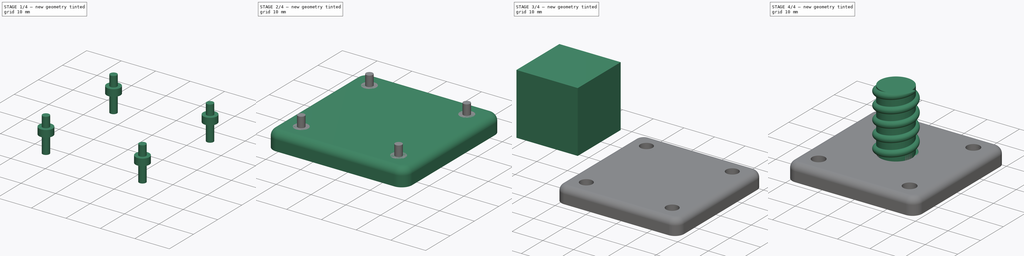
[diagram: build sequence overview — one tinted view per stage of 4, left to right]
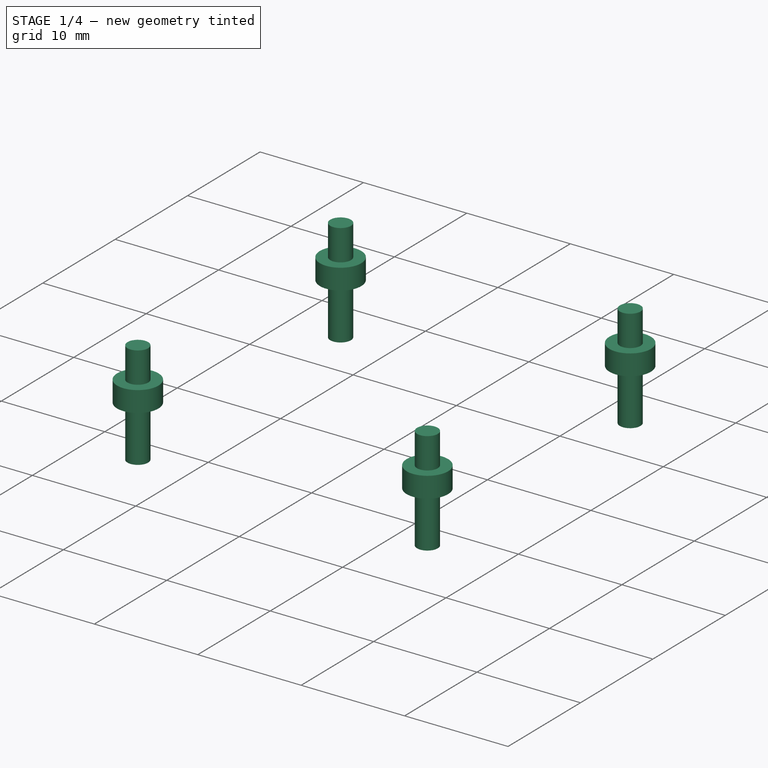
[diagram: stage 1 of 4 — iso view after this stage's code; geometry added in this stage tinted green]
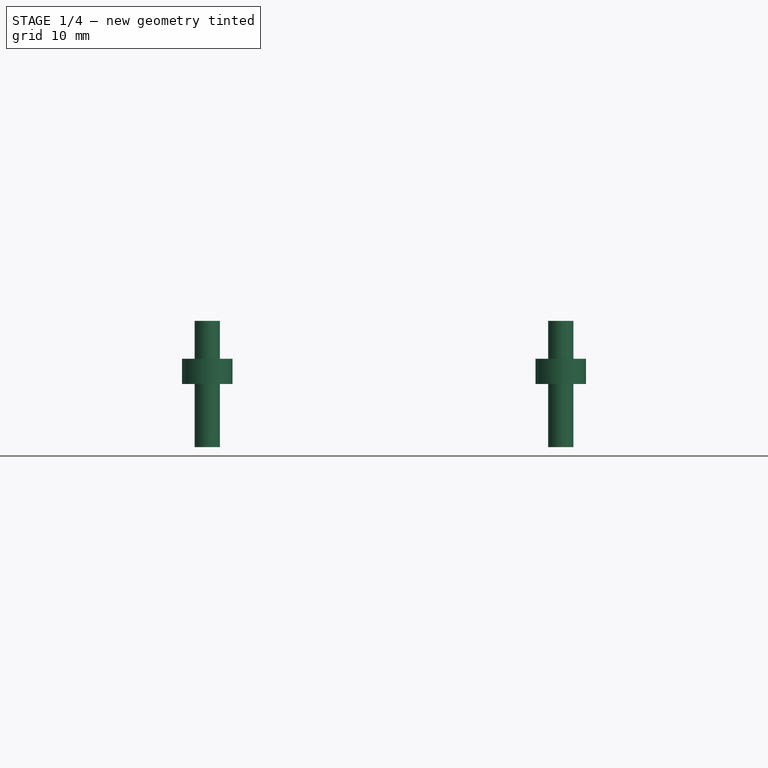
[diagram: stage 1 of 4 — front view after this stage's code; geometry added in this stage tinted green]
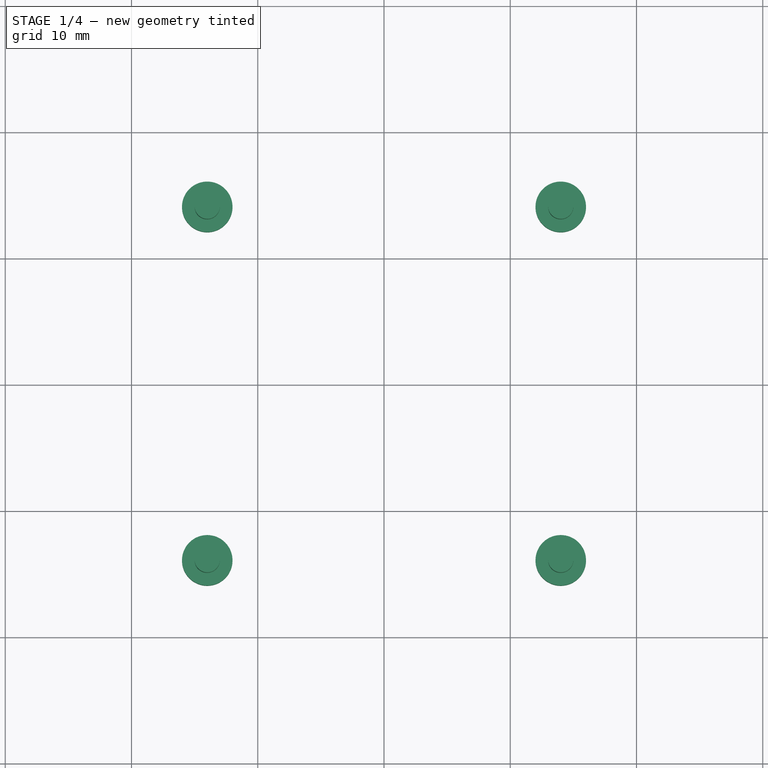
[diagram: stage 1 of 4 — top view after this stage's code; geometry added in this stage tinted green]
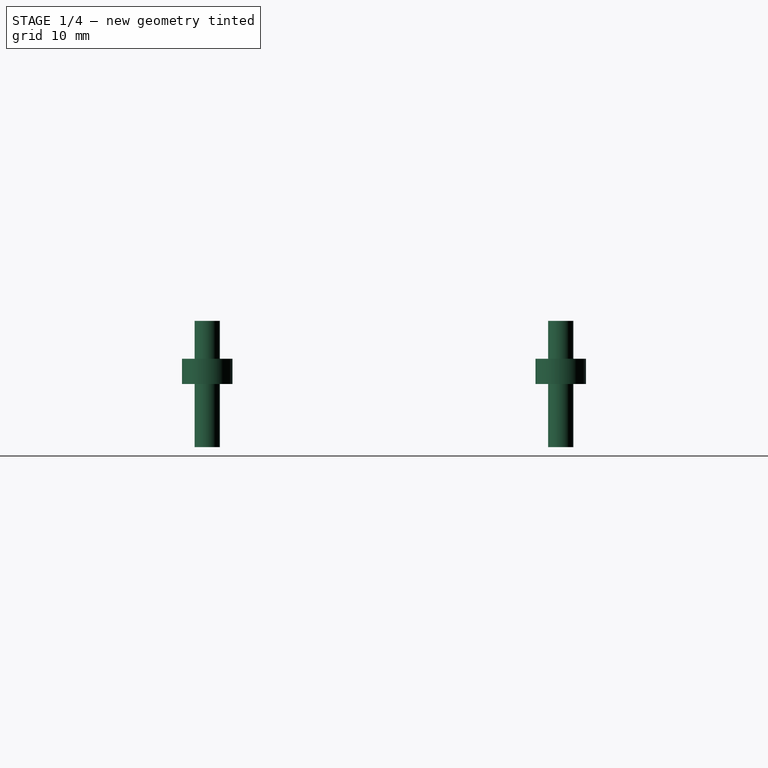
[diagram: stage 1 of 4 — right view after this stage's code; geometry added in this stage tinted green]
FCSTD DOCUMENT  (FreeCAD 0.16R6712 (Git))
Label: soporte techo con rosca
License: All rights reserved
LicenseURL: http://en.wikipedia.org/wiki/All_rights_reserved
objects: Part::Cylinder×3, Part::Cut×3, Part::Box×2, Part::Fillet×2, Part::FeaturePython×2, Part::Helix×1, Sketcher::SketchObject×1, Part::Sweep×1, Part::MultiFuse×1
note: 16 computed .brp shape members not serialized (recipe doc carries the construction recipe); baked Part::Feature solids carry a one-line shape summary decoded from their .brp

FEATURE [Part::Cylinder] Cylinder001  label="taladro"
  Angle = 360
  Height = 10
  Placement = pos=(6,6,-2) rot=(0,0,1;0rad)
  Radius = 1
FEATURE [Part::FeaturePython] Array  # Draft array (typed FeaturePython)
  Angle = 360
  ArrayType = 0
  Axis = (0,0,1)
  Base = -> Cylinder001
  Center = (0,0,0)
  Fuse = false
  IntervalAxis = (0,0,0)
  IntervalX = (28,0,0)
  IntervalY = (0,28,0)
  IntervalZ = (0,0,0)
  NumberPolar = 1
  NumberX = 2
  NumberY = 2
  NumberZ = 1
FEATURE [Part::Cylinder] Cylinder002  label="taladro001"
  Angle = 360
  Height = 2
  Placement = pos=(6,6,3) rot=(0,0,1;0rad)
  Radius = 2
FEATURE [Part::FeaturePython] Array001  # Draft array (typed FeaturePython)
  Angle = 360
  ArrayType = 0
  Axis = (0,0,1)
  Base = -> Cylinder002
  Center = (0,0,0)
  Fuse = false
  IntervalAxis = (0,0,0)
  IntervalX = (28,0,0)
  IntervalY = (0,28,0)
  IntervalZ = (0,0,0)
  NumberPolar = 1
  NumberX = 2
  NumberY = 2
  NumberZ = 1
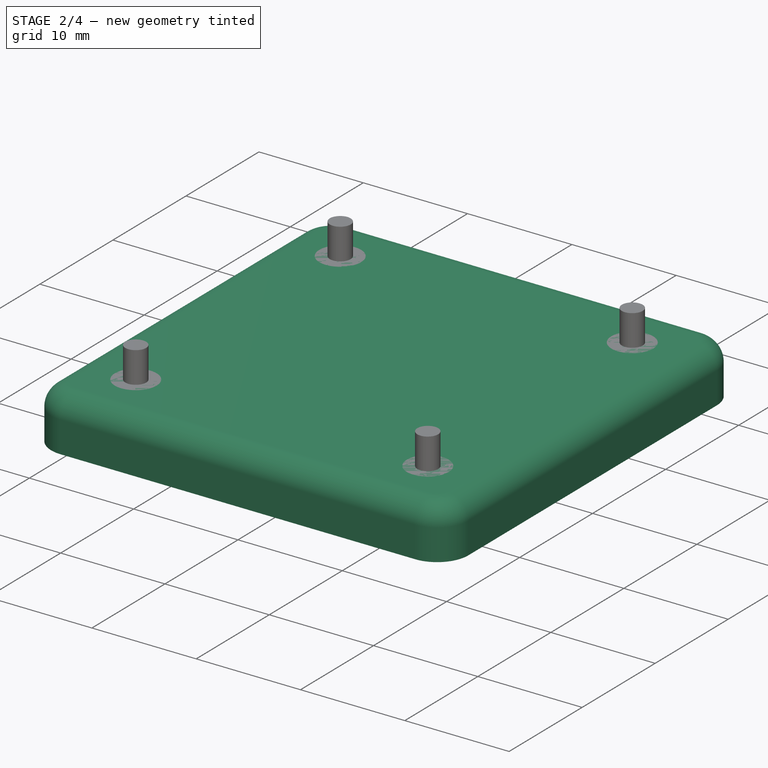
[diagram: stage 2 of 4 — iso view after this stage's code; geometry added in this stage tinted green]
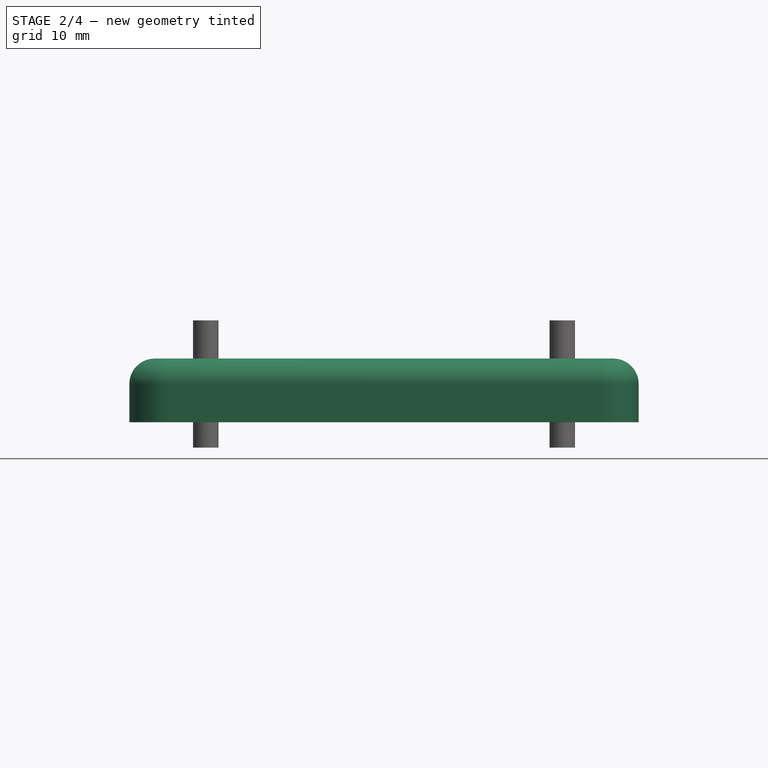
[diagram: stage 2 of 4 — front view after this stage's code; geometry added in this stage tinted green]
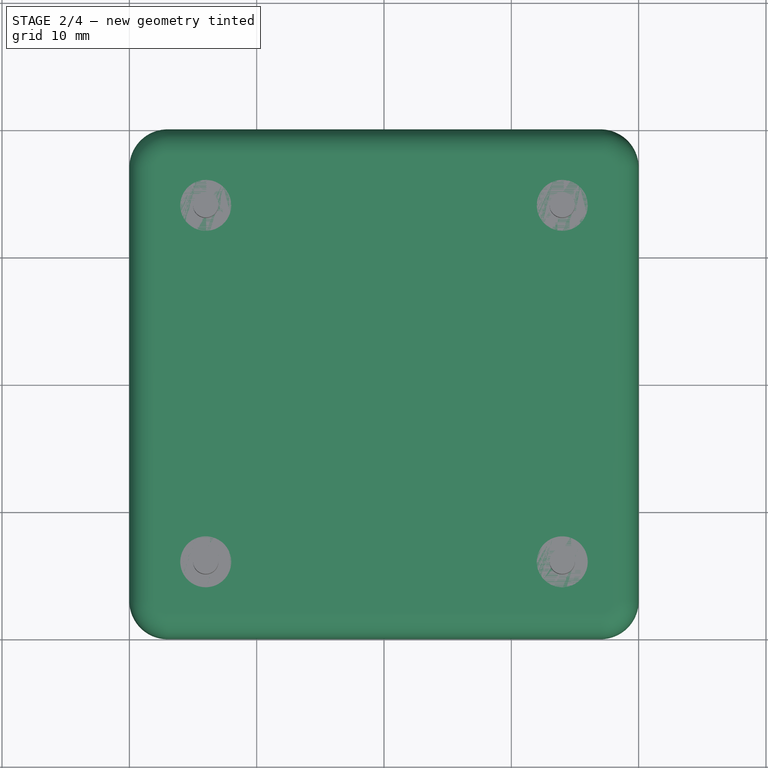
[diagram: stage 2 of 4 — top view after this stage's code; geometry added in this stage tinted green]
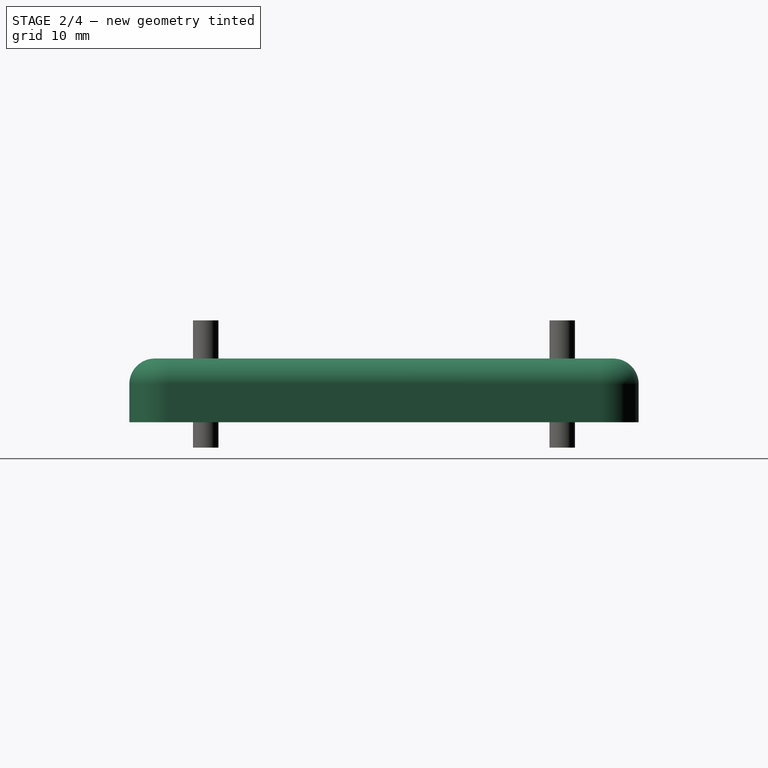
[diagram: stage 2 of 4 — right view after this stage's code; geometry added in this stage tinted green]
FEATURE [Part::Box] Box  label="Cube"
  Height = 5
  Length = 40
  Width = 40
FEATURE [Part::Fillet] Fillet
  Base = -> Box
  Edges = 4 edges r=3: [Edge1,Edge3,Edge5,Edge7]
FEATURE [Part::Fillet] Fillet001
  Base = -> Fillet
  Edges = 8 edges r=2: [Edge1,Edge5,Edge6,Edge7,Edge8,Edge9,Edge10,Edge11]
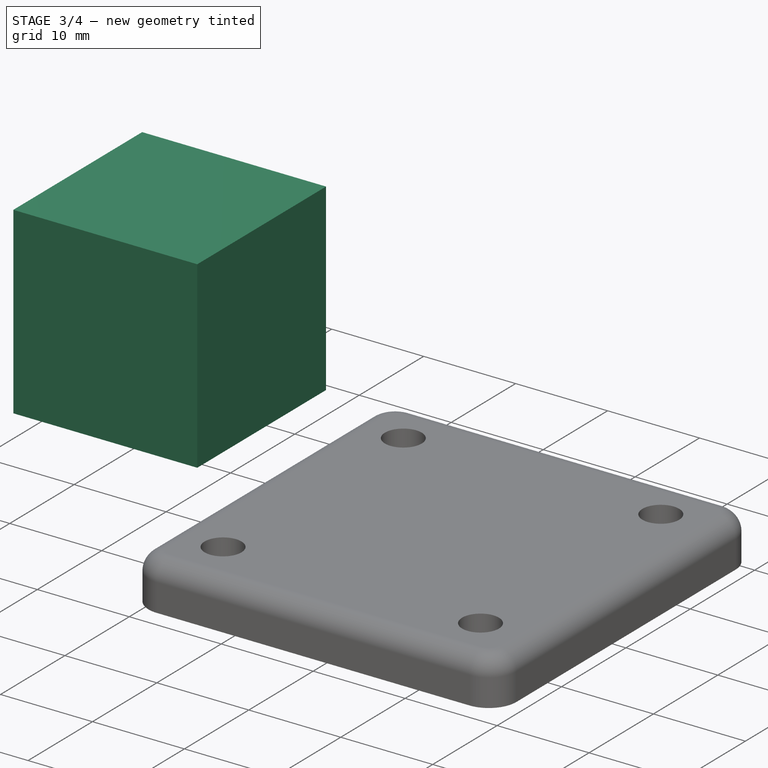
[diagram: stage 3 of 4 — iso view after this stage's code; geometry added in this stage tinted green]
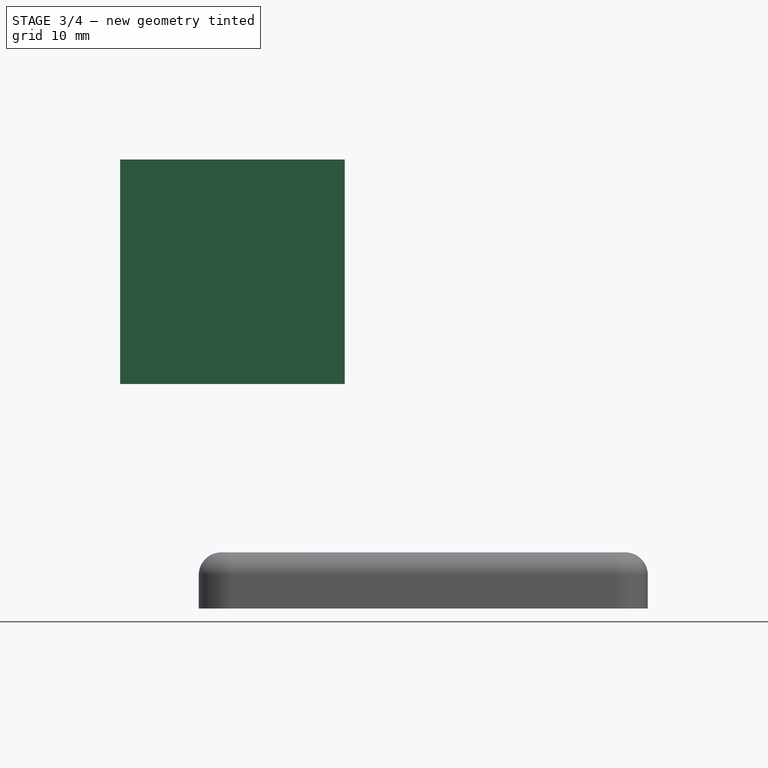
[diagram: stage 3 of 4 — front view after this stage's code; geometry added in this stage tinted green]
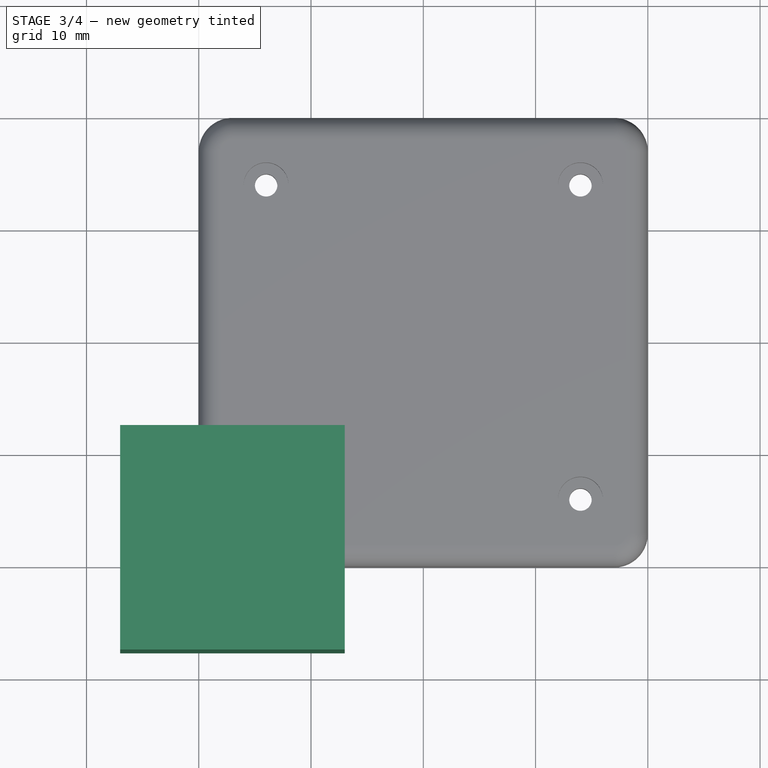
[diagram: stage 3 of 4 — top view after this stage's code; geometry added in this stage tinted green]
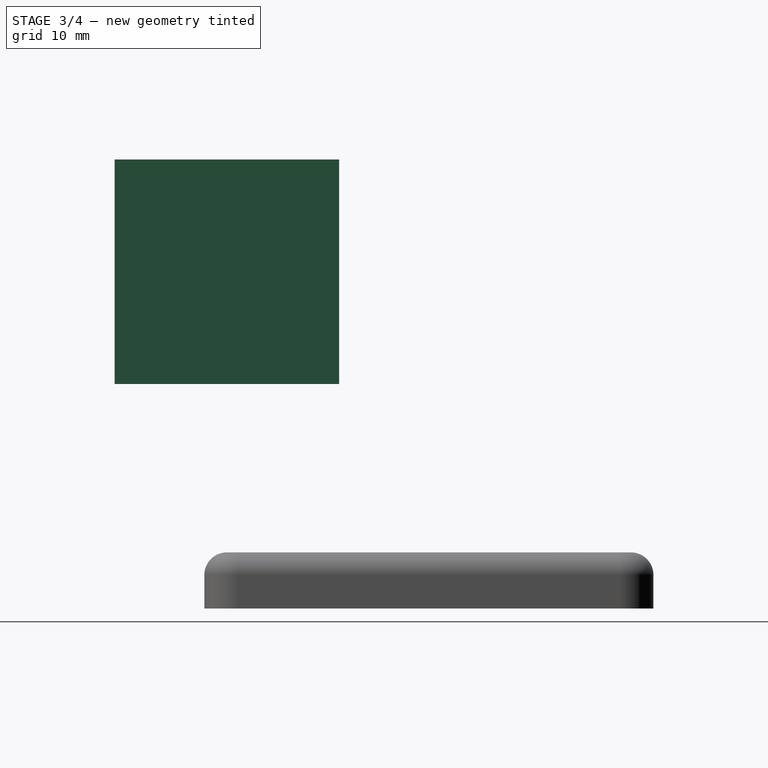
[diagram: stage 3 of 4 — right view after this stage's code; geometry added in this stage tinted green]
FEATURE [Part::Box] Box001  label="Cube001"
  Height = 20
  Length = 20
  Placement = pos=(-7,-8,20) rot=(0,0,1;0rad)
  Width = 20
FEATURE [Part::Cut] Cut001
  Base = -> Fillet001
  Tool = -> Array
FEATURE [Part::Cut] Cut002
  Base = -> Cut001
  Tool = -> Array001
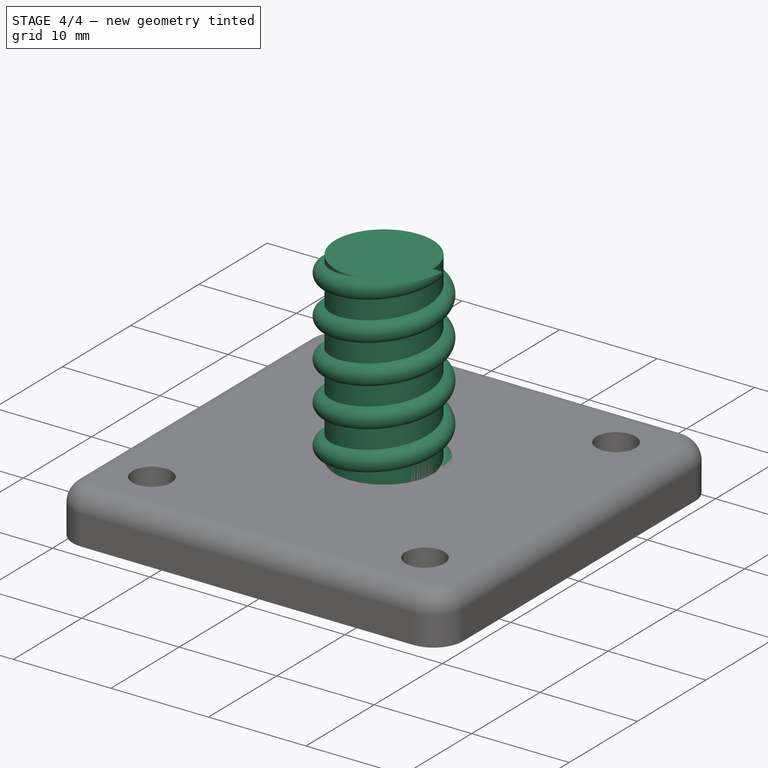
[diagram: stage 4 of 4 — iso view after this stage's code; geometry added in this stage tinted green]
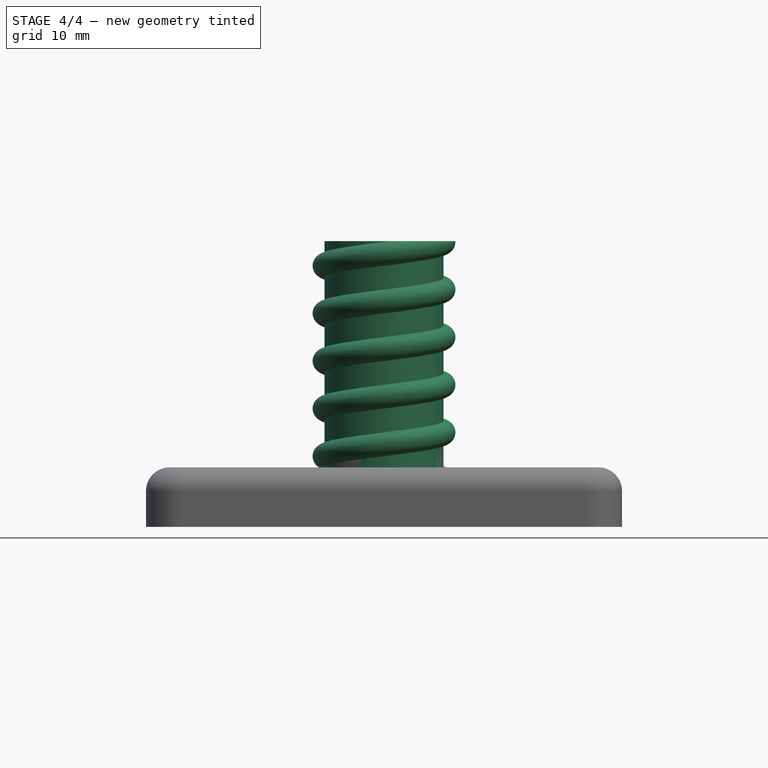
[diagram: stage 4 of 4 — front view after this stage's code; geometry added in this stage tinted green]
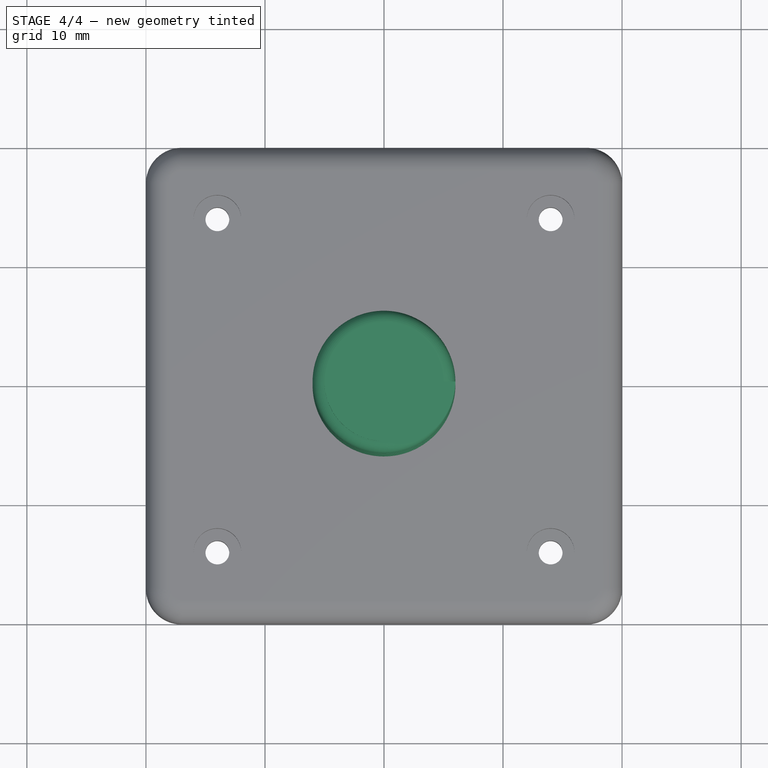
[diagram: stage 4 of 4 — top view after this stage's code; geometry added in this stage tinted green]
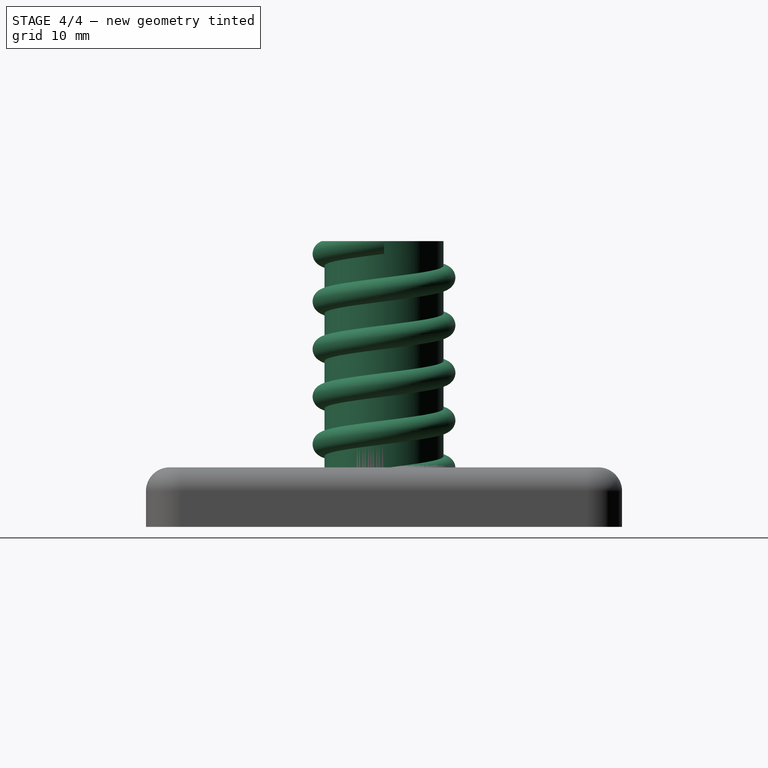
[diagram: stage 4 of 4 — right view after this stage's code; geometry added in this stage tinted green]
FEATURE [Part::Helix] Helix
  Angle = 0
  Height = 20
  LocalCoord = 0
  Pitch = 4
  Radius = 5
  Style = 1
FEATURE [Part::Cylinder] Cylinder
  Angle = 360
  Height = 20
  Radius = 5
FEATURE [Sketcher::SketchObject] Sketch
  Placement = pos=(0,0,0) rot=(1,0,0;1.5708rad)
  sketch-geometry (1):
    g0: Circle CenterX=5 CenterY=-0.065053 CenterZ=0 NormalX=0 NormalY=0 NormalZ=1 Radius=1
  constraints (2):
    c: Radius(g0) = 1
    c: DistanceX(g-1,g0) = 5
FEATURE [Part::Sweep] Sweep
  Frenet = true
  Sections = -> [Sketch]
  Solid = true
  Spine = -> Helix
  Transition = 1
FEATURE [Part::Cut] Cut  label="rosca"
  Base = -> Sweep
  Tool = -> Box001
FEATURE [Part::MultiFuse] Fusion  label="rosca macho"
  Placement = pos=(20,20,4) rot=(0,0,1;0rad)
  Shapes = -> [Cut,Cylinder]
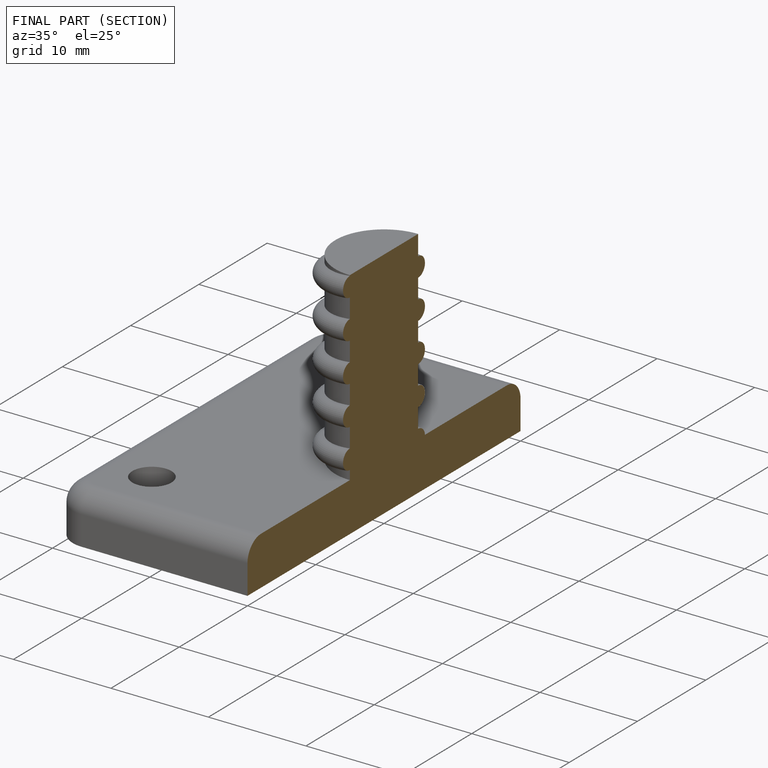
[diagram: finished part — half-section view (interior)]
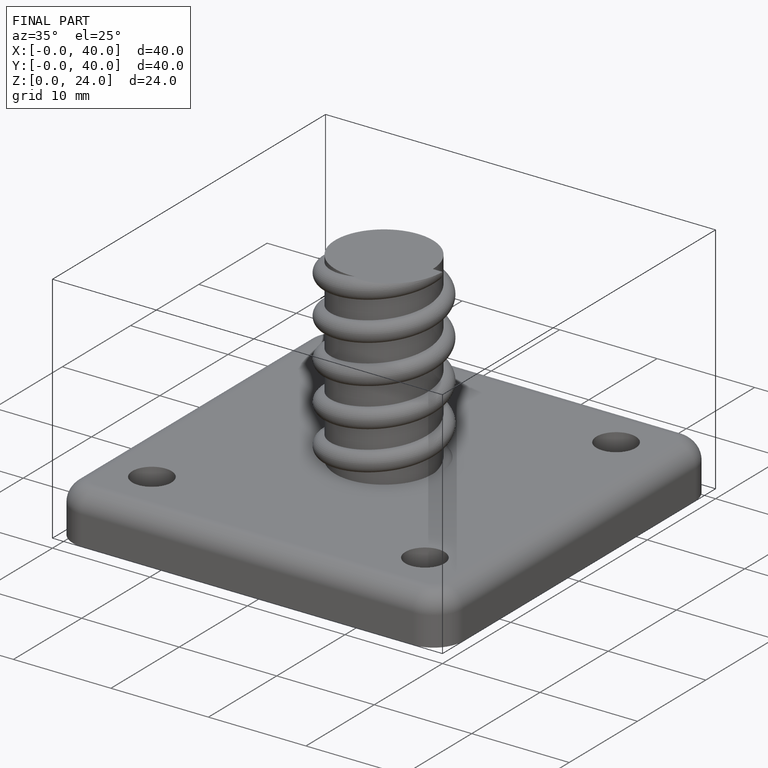
[diagram: finished part — iso view with bounding-box wireframe]
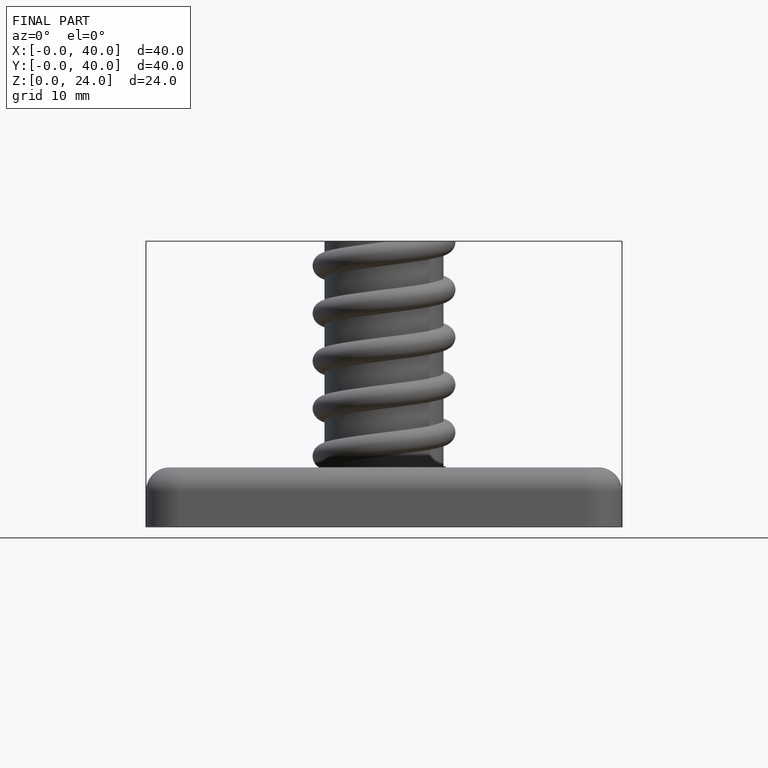
[diagram: finished part — front view with bounding-box wireframe]
